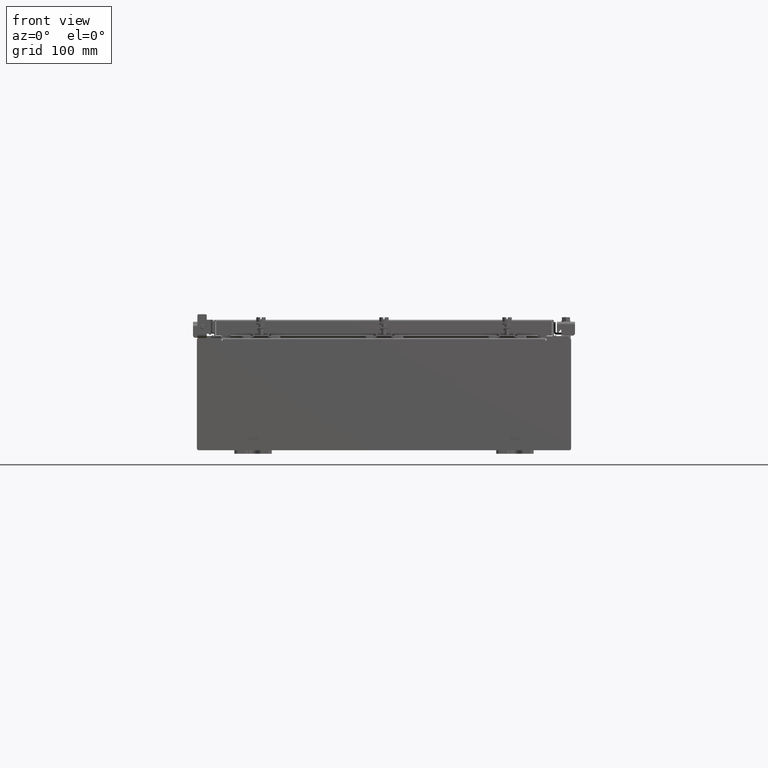
[diagram: clean part render]
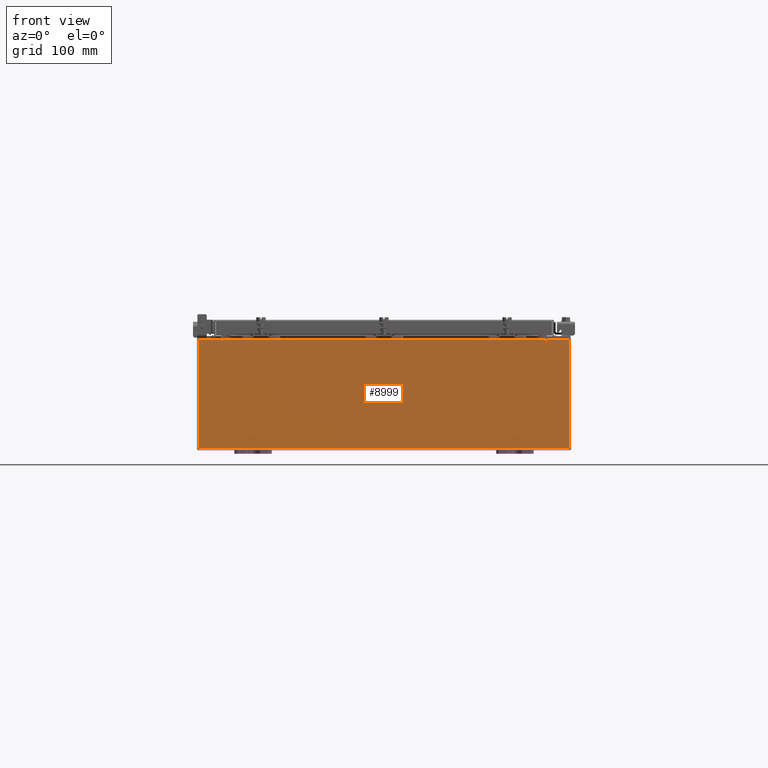
[diagram: same view with one face highlighted and labeled with its STEP entity id]
A machine part, front view. The second image highlights one B-rep face of the part: STEP entity #8999.
In plain terms, the highlighted planar face has unit normal (-0, 1, -0).
Its self-contained STEP definition (entity closure, byte-faithful):
#4 = DIRECTION ( 'NONE',  ( -0.0000000000000000000, 1.000000000000000000, -0.0000000000000000000 ) ) ;
#40 = VERTEX_POINT ( 'NONE', #1031 ) ;
#806 = CARTESIAN_POINT ( 'NONE',  ( 9.925300000000000000, 0.0000000000000000000, 2.925300000000000500 ) ) ;
#1031 = CARTESIAN_POINT ( 'NONE',  ( 9.925300000000000000, 0.0000000000000000000, 2.925300000000000500 ) ) ;
#1264 = DIRECTION ( 'NONE',  ( 0.0000000000000000000, 0.0000000000000000000, 1.000000000000000000 ) ) ;
#1269 = VERTEX_POINT ( 'NONE', #2253 ) ;
#1271 = CARTESIAN_POINT ( 'NONE',  ( -8.637200000000000000, 1.024442997624098700E-016, 2.912300000000000600 ) ) ;
#1298 = VERTEX_POINT ( 'NONE', #18559 ) ;
#2061 = VERTEX_POINT ( 'NONE', #22530 ) ;
#2218 = EDGE_CURVE ( 'NONE', #21869, #4282, #17825, .T. ) ;
#2253 = CARTESIAN_POINT ( 'NONE',  ( -9.925300000000000000, 0.0000000000000000000, 2.925300000000000500 ) ) ;
#2280 = CIRCLE ( 'NONE', #6531, 0.01867500000000003900 ) ;
#2610 = DIRECTION ( 'NONE',  ( 0.0000000000000000000, 0.0000000000000000000, -1.000000000000000000 ) ) ;
#2655 = ORIENTED_EDGE ( 'NONE', *, *, #18380, .F. ) ;
#2677 = VERTEX_POINT ( 'NONE', #12102 ) ;
#2791 = CARTESIAN_POINT ( 'NONE',  ( 8.637200000000000000, 0.0000000000000000000, 0.0000000000000000000 ) ) ;
#3159 = VECTOR ( 'NONE', #22854, 39.37007874015748100 ) ;
#3233 = DIRECTION ( 'NONE',  ( -6.510859170600007400E-014, 0.0000000000000000000, -1.000000000000000000 ) ) ;
#3365 = DIRECTION ( 'NONE',  ( -0.0000000000000000000, -0.0000000000000000000, 1.000000000000000000 ) ) ;
#3573 = VECTOR ( 'NONE', #17090, 39.37007874015748100 ) ;
#3939 = VECTOR ( 'NONE', #19808, 39.37007874015748100 ) ;
#4080 = LINE ( 'NONE', #806, #13023 ) ;
#4132 = VERTEX_POINT ( 'NONE', #12723 ) ;
#4282 = VERTEX_POINT ( 'NONE', #13093 ) ;
#4387 = ORIENTED_EDGE ( 'NONE', *, *, #21707, .T. ) ;
#4501 = AXIS2_PLACEMENT_3D ( 'NONE', #10717, #4, #12532 ) ;
#4594 = LINE ( 'NONE', #1271, #23022 ) ;
#4601 = VECTOR ( 'NONE', #5136, 39.37007874015748100 ) ;
#4622 = CARTESIAN_POINT ( 'NONE',  ( -9.925300000000000000, 0.0000000000000000000, 2.925300000000000500 ) ) ;
#4787 = EDGE_CURVE ( 'NONE', #2061, #2677, #21247, .T. ) ;
#4967 = VECTOR ( 'NONE', #3365, 39.37007874015748100 ) ;
#5023 = CARTESIAN_POINT ( 'NONE',  ( -8.637199999999996400, -0.0000000000000000000, 0.0000000000000000000 ) ) ;
#5076 = EDGE_CURVE ( 'NONE', #22249, #21821, #20415, .T. ) ;
#5136 = DIRECTION ( 'NONE',  ( 1.000000000000000000, 0.0000000000000000000, 0.0000000000000000000 ) ) ;
#5606 = DIRECTION ( 'NONE',  ( -0.0000000000000000000, 1.000000000000000000, -0.0000000000000000000 ) ) ;
#5710 = AXIS2_PLACEMENT_3D ( 'NONE', #8754, #10547, #23069 ) ;
#6531 = AXIS2_PLACEMENT_3D ( 'NONE', #16323, #5606, #18105 ) ;
#6681 = CIRCLE ( 'NONE', #4501, 0.01867500000000003900 ) ;
#7202 = LINE ( 'NONE', #4622, #3573 ) ;
#7712 = ORIENTED_EDGE ( 'NONE', *, *, #16621, .T. ) ;
#7897 = LINE ( 'NONE', #5023, #3159 ) ;
#8754 = CARTESIAN_POINT ( 'NONE',  ( 0.0000000000000000000, 0.0000000000000000000, 0.0000000000000000000 ) ) ;
#8999 = ADVANCED_FACE ( 'NONE', ( #17509 ), #19469, .F. ) ;
#9322 = LINE ( 'NONE', #15861, #4601 ) ;
#9692 = ORIENTED_EDGE ( 'NONE', *, *, #10881, .T. ) ;
#9715 = LINE ( 'NONE', #15792, #4967 ) ;
#10547 = DIRECTION ( 'NONE',  ( 0.0000000000000000000, -1.000000000000000000, 0.0000000000000000000 ) ) ;
#10696 = EDGE_LOOP ( 'NONE', ( #12093, #19275, #18327, #7712, #16501, #2655, #21978, #4387, #14382, #10854, #14117, #9692 ) ) ;
#10717 = CARTESIAN_POINT ( 'NONE',  ( -8.655874999999996400, 0.0000000000000000000, 2.874950000000000600 ) ) ;
#10854 = ORIENTED_EDGE ( 'NONE', *, *, #4787, .T. ) ;
#10881 = EDGE_CURVE ( 'NONE', #1269, #16604, #9322, .T. ) ;
#11987 = EDGE_CURVE ( 'NONE', #40, #2061, #4080, .T. ) ;
#12093 = ORIENTED_EDGE ( 'NONE', *, *, #13273, .F. ) ;
#12102 = CARTESIAN_POINT ( 'NONE',  ( -9.925300000000000000, 0.0000000000000000000, -2.925299999999999600 ) ) ;
#12103 = CARTESIAN_POINT ( 'NONE',  ( 8.674550000000001800, 0.0000000000000000000, 2.925300000000000500 ) ) ;
#12532 = DIRECTION ( 'NONE',  ( 0.0000000000000000000, 0.0000000000000000000, -1.000000000000000000 ) ) ;
#12537 = VECTOR ( 'NONE', #3233, 39.37007874015748100 ) ;
#12723 = CARTESIAN_POINT ( 'NONE',  ( -8.674549999999996400, 0.0000000000000000000, 2.874950000000000600 ) ) ;
#13023 = VECTOR ( 'NONE', #2610, 39.37007874015748100 ) ;
#13093 = CARTESIAN_POINT ( 'NONE',  ( 8.674550000000000000, 0.0000000000000000000, 2.874950000000000600 ) ) ;
#13273 = EDGE_CURVE ( 'NONE', #4132, #16604, #22197, .T. ) ;
#13763 = DIRECTION ( 'NONE',  ( 1.000000000000000000, 0.0000000000000000000, 0.0000000000000000000 ) ) ;
#14117 = ORIENTED_EDGE ( 'NONE', *, *, #18118, .T. ) ;
#14382 = ORIENTED_EDGE ( 'NONE', *, *, #11987, .T. ) ;
#15219 = VERTEX_POINT ( 'NONE', #18115 ) ;
#15666 = VECTOR ( 'NONE', #22484, 39.37007874015748100 ) ;
#15791 = CARTESIAN_POINT ( 'NONE',  ( 8.674549999999813500, -0.0000000000000000000, -5.647877341832707700E-013 ) ) ;
#15792 = CARTESIAN_POINT ( 'NONE',  ( -9.925300000000000000, 0.0000000000000000000, 2.925300000000000500 ) ) ;
#15861 = CARTESIAN_POINT ( 'NONE',  ( -9.925300000000000000, 0.0000000000000000000, 2.925300000000000500 ) ) ;
#16323 = CARTESIAN_POINT ( 'NONE',  ( 8.655875000000000000, 0.0000000000000000000, 2.874950000000000600 ) ) ;
#16501 = ORIENTED_EDGE ( 'NONE', *, *, #5076, .F. ) ;
#16519 = CARTESIAN_POINT ( 'NONE',  ( 8.637200000000000000, 0.0000000000000000000, 2.874950000000000600 ) ) ;
#16604 = VERTEX_POINT ( 'NONE', #18980 ) ;
#16621 = EDGE_CURVE ( 'NONE', #1298, #21821, #4594, .T. ) ;
#17090 = DIRECTION ( 'NONE',  ( 1.000000000000000000, 0.0000000000000000000, 0.0000000000000000000 ) ) ;
#17498 = EDGE_CURVE ( 'NONE', #1298, #15219, #7897, .T. ) ;
#17509 = FACE_OUTER_BOUND ( 'NONE', #10696, .T. ) ;
#17825 = LINE ( 'NONE', #15791, #12537 ) ;
#18009 = CARTESIAN_POINT ( 'NONE',  ( -9.925300000000000000, 0.0000000000000000000, -2.925299999999999600 ) ) ;
#18105 = DIRECTION ( 'NONE',  ( 0.0000000000000000000, 0.0000000000000000000, -1.000000000000000000 ) ) ;
#18115 = CARTESIAN_POINT ( 'NONE',  ( -8.637199999999996400, -0.0000000000000000000, 2.874950000000000600 ) ) ;
#18118 = EDGE_CURVE ( 'NONE', #2677, #1269, #9715, .T. ) ;
#18327 = ORIENTED_EDGE ( 'NONE', *, *, #17498, .F. ) ;
#18380 = EDGE_CURVE ( 'NONE', #4282, #22249, #2280, .T. ) ;
#18559 = CARTESIAN_POINT ( 'NONE',  ( -8.637199999999996400, 1.024442997624098700E-016, 2.912300000000000600 ) ) ;
#18980 = CARTESIAN_POINT ( 'NONE',  ( -8.674549999999996400, 0.0000000000000000000, 2.925300000000000500 ) ) ;
#19051 = CARTESIAN_POINT ( 'NONE',  ( -8.674549999999996400, -0.0000000000000000000, 0.0000000000000000000 ) ) ;
#19275 = ORIENTED_EDGE ( 'NONE', *, *, #20661, .F. ) ;
#19469 = PLANE ( 'NONE',  #5710 ) ;
#19808 = DIRECTION ( 'NONE',  ( -1.000000000000000000, -0.0000000000000000000, -0.0000000000000000000 ) ) ;
#20415 = LINE ( 'NONE', #2791, #15666 ) ;
#20661 = EDGE_CURVE ( 'NONE', #15219, #4132, #6681, .T. ) ;
#21060 = VECTOR ( 'NONE', #1264, 39.37007874015748100 ) ;
#21247 = LINE ( 'NONE', #18009, #3939 ) ;
#21707 = EDGE_CURVE ( 'NONE', #21869, #40, #7202, .T. ) ;
#21821 = VERTEX_POINT ( 'NONE', #22657 ) ;
#21869 = VERTEX_POINT ( 'NONE', #12103 ) ;
#21978 = ORIENTED_EDGE ( 'NONE', *, *, #2218, .F. ) ;
#22197 = LINE ( 'NONE', #19051, #21060 ) ;
#22249 = VERTEX_POINT ( 'NONE', #16519 ) ;
#22484 = DIRECTION ( 'NONE',  ( 0.0000000000000000000, 0.0000000000000000000, 1.000000000000000000 ) ) ;
#22530 = CARTESIAN_POINT ( 'NONE',  ( 9.925300000000000000, 0.0000000000000000000, -2.925299999999999600 ) ) ;
#22657 = CARTESIAN_POINT ( 'NONE',  ( 8.637200000000000000, 0.0000000000000000000, 2.912300000000000600 ) ) ;
#22854 = DIRECTION ( 'NONE',  ( 0.0000000000000000000, 0.0000000000000000000, -1.000000000000000000 ) ) ;
#23022 = VECTOR ( 'NONE', #13763, 39.37007874015748100 ) ;
#23069 = DIRECTION ( 'NONE',  ( 0.0000000000000000000, -0.0000000000000000000, -1.000000000000000000 ) ) ;